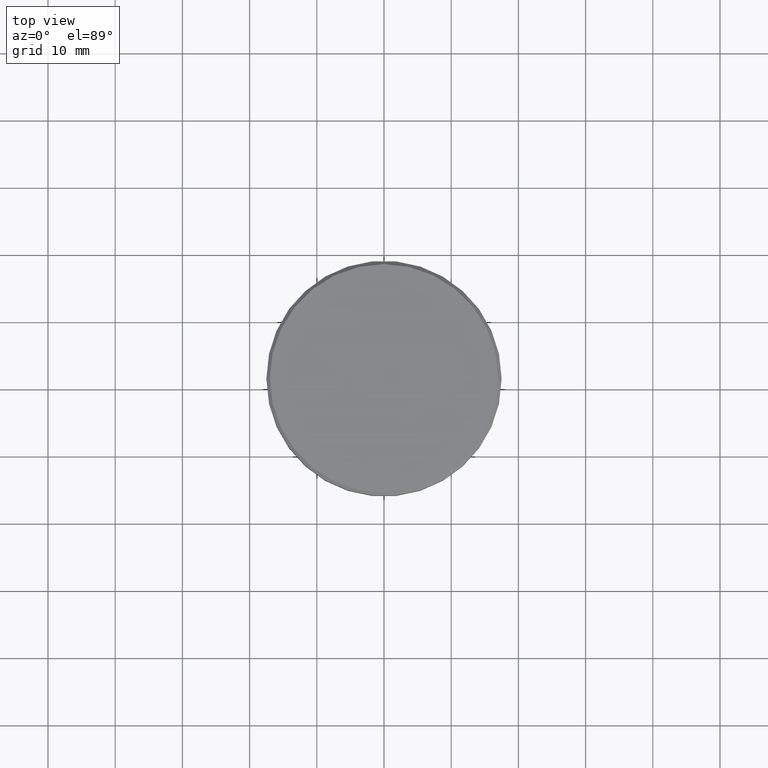
[diagram: clean part render]
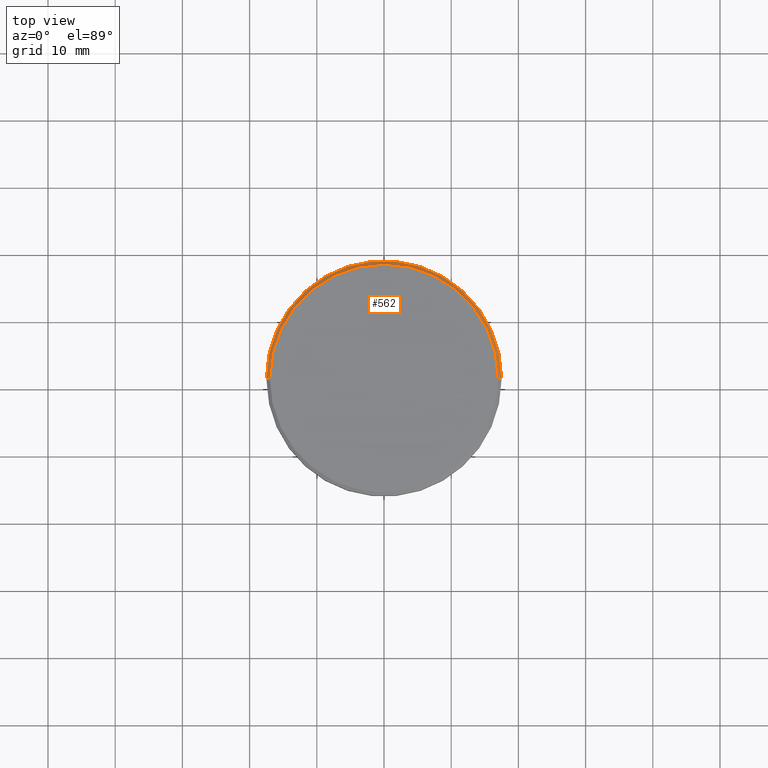
[diagram: same view with one face highlighted and labeled with its STEP entity id]
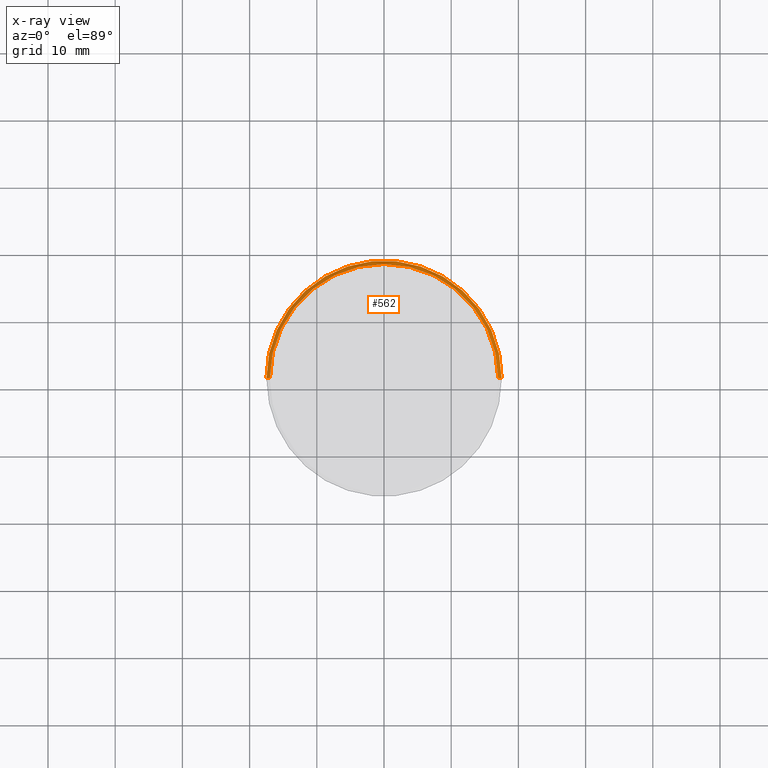
[diagram: x-ray of the same camera — body ghosted, the highlighted face saturated]
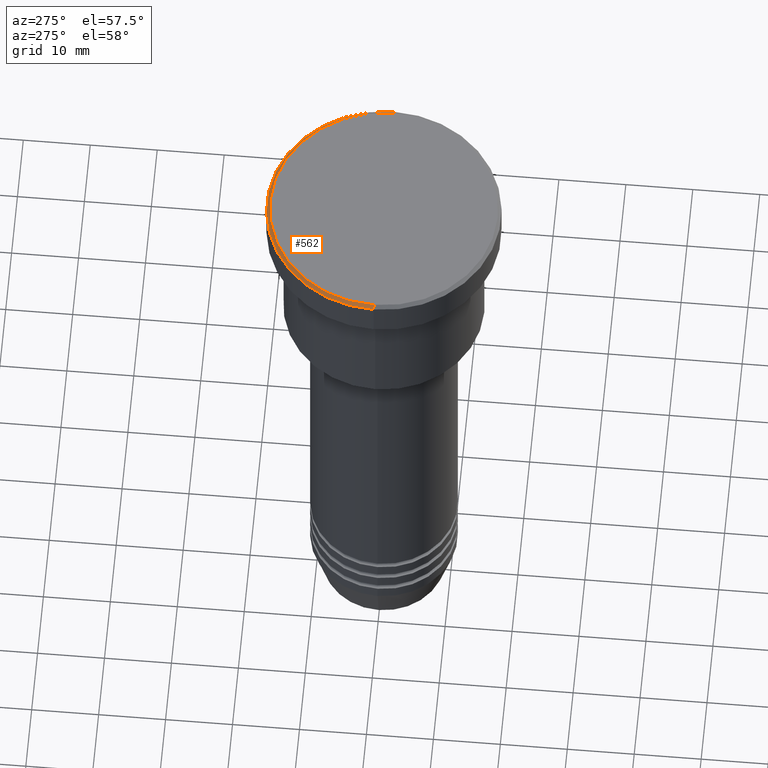
[diagram: same view with one face highlighted and labeled with its STEP entity id]
A machine part, top view. The second image highlights one B-rep face of the part: STEP entity #562.
The next image is the same camera in x-ray: the body ghosted, the highlighted face saturated — about 0% of this face is hidden behind the body in this view.
A second angle (auxiliary view) of the same face is appended — the face is thin or edge-on in the first view.
In plain terms, the highlighted conical surface has half-angle 45 deg.
Its self-contained STEP definition (entity closure, byte-faithful):
#8 = CARTESIAN_POINT ( 'NONE',  ( 17.50000000000000000, 0.000000000000000000, -0.5000000000000143219 ) ) ;
#14 = DIRECTION ( 'NONE',  ( -0.000000000000000000, -0.000000000000000000, 1.000000000000000000 ) ) ;
#47 = CARTESIAN_POINT ( 'NONE',  ( -16.99999999999998579, 0.000000000000000000, 0.000000000000000000 ) ) ;
#126 = CIRCLE ( 'NONE', #167, 16.99999999999998579 ) ;
#167 = AXIS2_PLACEMENT_3D ( 'NONE', #317, #14, #1011 ) ;
#197 = EDGE_CURVE ( 'NONE', #480, #652, #810, .T. ) ;
#231 = CARTESIAN_POINT ( 'NONE',  ( 0.000000000000000000, 0.000000000000000000, 0.000000000000000000 ) ) ;
#239 = ORIENTED_EDGE ( 'NONE', *, *, #1099, .F. ) ;
#247 = DIRECTION ( 'NONE',  ( 1.000000000000000000, 0.000000000000000000, 0.000000000000000000 ) ) ;
#261 = VERTEX_POINT ( 'NONE', #8 ) ;
#317 = CARTESIAN_POINT ( 'NONE',  ( 0.000000000000000000, 0.000000000000000000, 0.000000000000000000 ) ) ;
#324 = CARTESIAN_POINT ( 'NONE',  ( -16.99999999999998579, 0.000000000000000000, 0.000000000000000000 ) ) ;
#340 = DIRECTION ( 'NONE',  ( -0.7071067811865474617, 0.000000000000000000, -0.7071067811865474617 ) ) ;
#355 = EDGE_LOOP ( 'NONE', ( #239, #700, #997, #1153 ) ) ;
#388 = EDGE_CURVE ( 'NONE', #586, #261, #682, .T. ) ;
#480 = VERTEX_POINT ( 'NONE', #47 ) ;
#533 = CARTESIAN_POINT ( 'NONE',  ( 16.99999999999998579, 2.081899558550499096E-15, 0.000000000000000000 ) ) ;
#562 = ADVANCED_FACE ( 'NONE', ( #1143 ), #766, .T. ) ;
#586 = VERTEX_POINT ( 'NONE', #615 ) ;
#592 = DIRECTION ( 'NONE',  ( -1.000000000000000000, 0.000000000000000000, 0.000000000000000000 ) ) ;
#615 = CARTESIAN_POINT ( 'NONE',  ( 16.99999999999998579, 2.112515728529183278E-15, 0.000000000000000000 ) ) ;
#652 = VERTEX_POINT ( 'NONE', #750 ) ;
#682 = LINE ( 'NONE', #533, #1125 ) ;
#700 = ORIENTED_EDGE ( 'NONE', *, *, #388, .T. ) ;
#707 = AXIS2_PLACEMENT_3D ( 'NONE', #1052, #794, #247 ) ;
#750 = CARTESIAN_POINT ( 'NONE',  ( -17.50000000000000000, 2.143131898507868248E-15, -0.5000000000000143219 ) ) ;
#766 = CONICAL_SURFACE ( 'NONE', #1017, 16.99999999999998579, 0.7853981633974482790 ) ;
#794 = DIRECTION ( 'NONE',  ( 0.000000000000000000, 0.000000000000000000, -1.000000000000000000 ) ) ;
#810 = LINE ( 'NONE', #324, #814 ) ;
#814 = VECTOR ( 'NONE', #340, 1000.000000000000114 ) ;
#897 = DIRECTION ( 'NONE',  ( 0.7071067811865474617, 8.659560562354932858E-17, -0.7071067811865474617 ) ) ;
#959 = CIRCLE ( 'NONE', #707, 17.50000000000000000 ) ;
#981 = EDGE_CURVE ( 'NONE', #652, #261, #959, .T. ) ;
#997 = ORIENTED_EDGE ( 'NONE', *, *, #981, .F. ) ;
#1011 = DIRECTION ( 'NONE',  ( 1.000000000000000000, 0.000000000000000000, 0.000000000000000000 ) ) ;
#1017 = AXIS2_PLACEMENT_3D ( 'NONE', #231, #1131, #592 ) ;
#1052 = CARTESIAN_POINT ( 'NONE',  ( 0.000000000000000000, 0.000000000000000000, -0.5000000000000143219 ) ) ;
#1099 = EDGE_CURVE ( 'NONE', #586, #480, #126, .T. ) ;
#1125 = VECTOR ( 'NONE', #897, 1000.000000000000114 ) ;
#1131 = DIRECTION ( 'NONE',  ( 0.000000000000000000, 0.000000000000000000, -1.000000000000000000 ) ) ;
#1143 = FACE_OUTER_BOUND ( 'NONE', #355, .T. ) ;
#1153 = ORIENTED_EDGE ( 'NONE', *, *, #197, .F. ) ;